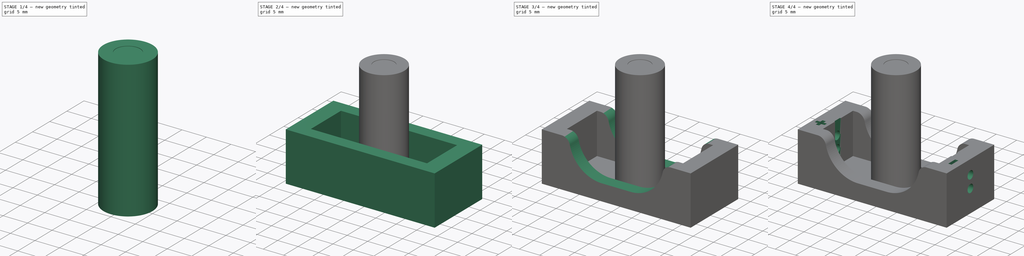
[diagram: build sequence overview — one tinted view per stage of 4, left to right]
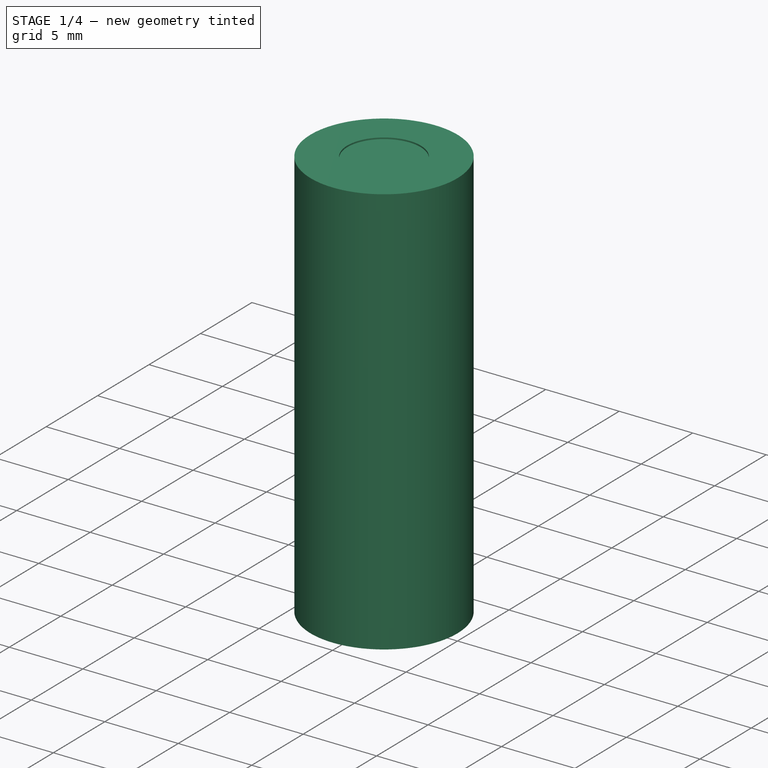
[diagram: stage 1 of 4 — iso view after this stage's code; geometry added in this stage tinted green]
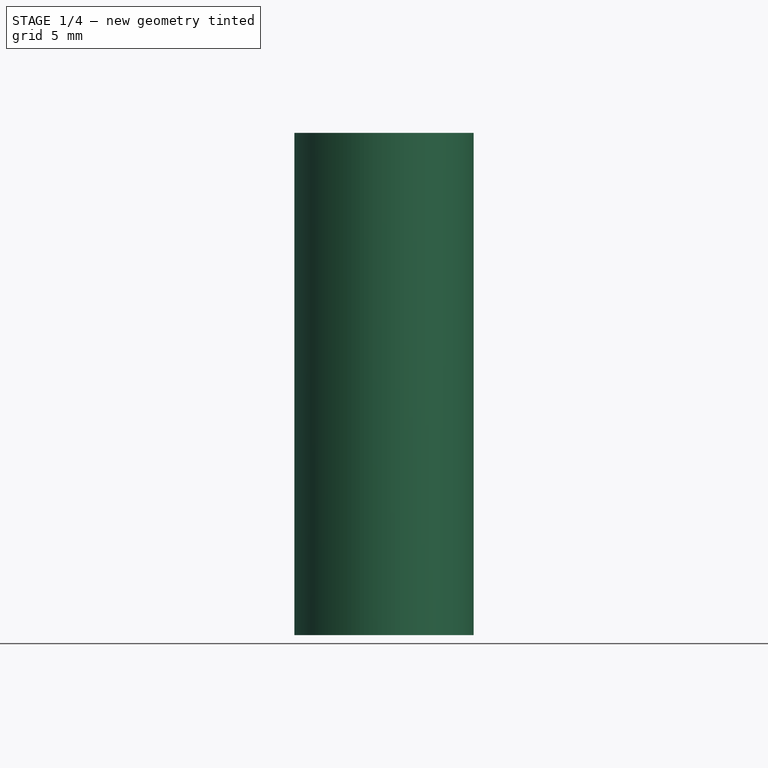
[diagram: stage 1 of 4 — front view after this stage's code; geometry added in this stage tinted green]
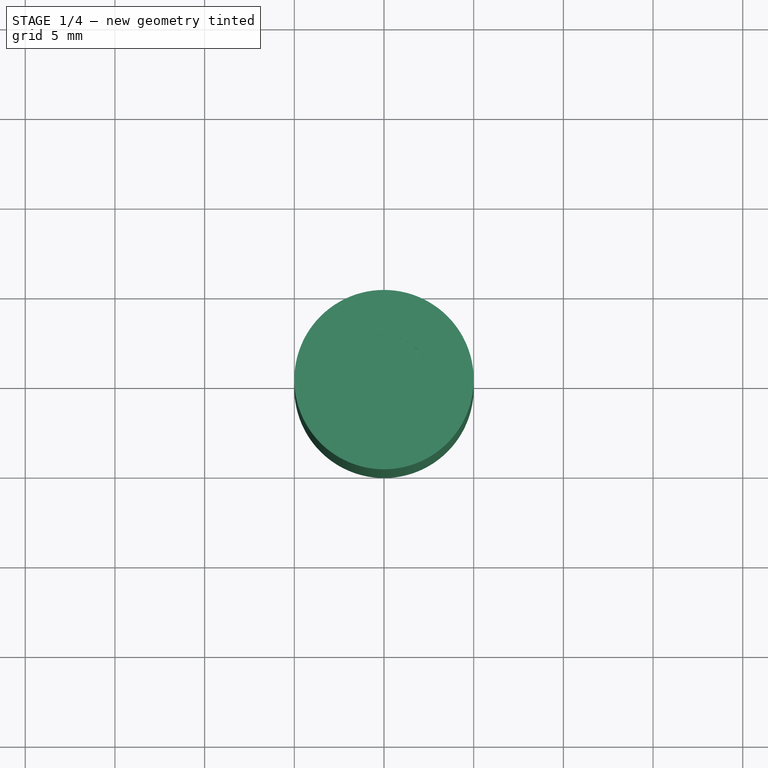
[diagram: stage 1 of 4 — top view after this stage's code; geometry added in this stage tinted green]
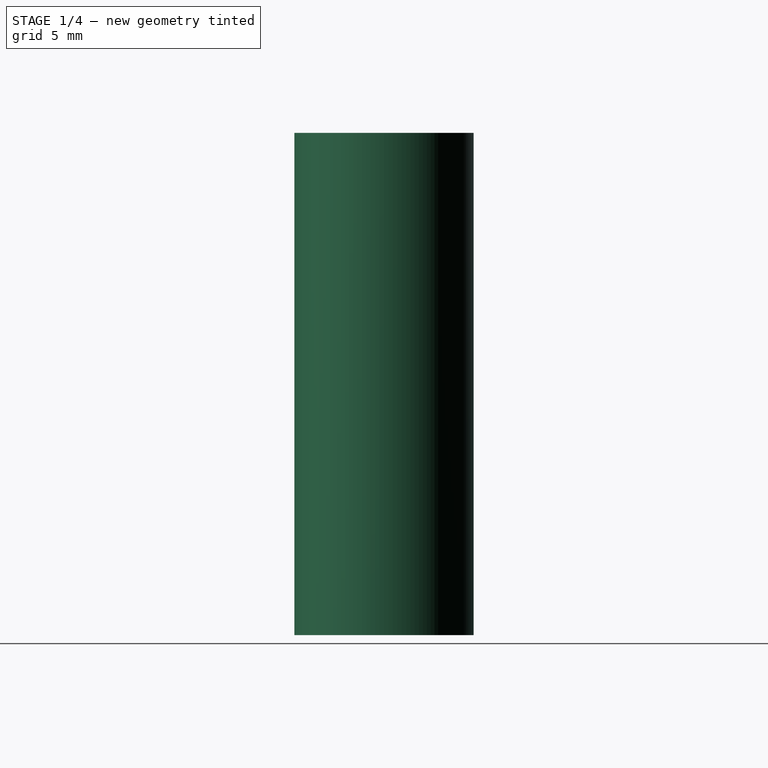
[diagram: stage 1 of 4 — right view after this stage's code; geometry added in this stage tinted green]
FCSTD DOCUMENT  (FreeCAD 0.19R)
Label: 23a-battery-container
License: All rights reserved
LicenseURL: http://en.wikipedia.org/wiki/All_rights_reserved
objects: Sketcher::SketchObject×8, PartDesign::Pocket×6, PartDesign::Pad×2, PartDesign::Body×2, Part::Cylinder×1, PartDesign::Fillet×1, PartDesign::FeatureBase×1
note: 30 computed .brp shape members not serialized (recipe doc carries the construction recipe); baked Part::Feature solids carry a one-line shape summary decoded from their .brp

FEATURE [Sketcher::SketchObject] Sketch
  FullyConstrained = true
  MapMode = 5
  Support = -> [XY_Plane]
  sketch-geometry (4):
    g0: LineSegment StartX=-18.2 StartY=8.3 StartZ=0 EndX=18.2 EndY=8.3 EndZ=0
    g1: LineSegment StartX=18.2 StartY=8.3 StartZ=0 EndX=18.2 EndY=-8.3 EndZ=0
    g2: LineSegment StartX=18.2 StartY=-8.3 StartZ=0 EndX=-18.2 EndY=-8.3 EndZ=0
    g3: LineSegment StartX=-18.2 StartY=-8.3 StartZ=0 EndX=-18.2 EndY=8.3 EndZ=0
  constraints (11):
    c: Coincident(g0,g1)
    c: Coincident(g1,g2)
    c: Coincident(g2,g3)
    c: Coincident(g3,g0)
    c: Horizontal(g0)
    c: Horizontal(g2)
    c: Vertical(g1)
    c: Vertical(g3)
    c: Symmetric(g1,g0,g-1)
    c: Distance(g0) = 36.4
    c: Distance(g1) = 16.6
FEATURE [Part::Cylinder] Cylinder  label="Цилиндр"
  Angle = 360
  AttacherType = Attacher::AttachEngine3D
  Height = 28
  Placement = pos=(-14,0,7) rot=(0,1,0;1.5708rad)
  Radius = 5
FEATURE [PartDesign::Body] Body  label="box"
  Group = -> [Sketch,Pad,Sketch001,Pad001,Sketch002,Pocket,Fillet,Sketch003,Pocket001,Sketch004,Pocket002,Sketch005,Pocket003]
  Origin = -> Origin
  Tip = -> Pocket003
FEATURE [PartDesign::FeatureBase] BaseFeature
  BaseFeature = -> Cylinder
FEATURE [Sketcher::SketchObject] Sketch006
  FullyConstrained = true
  MapMode = 5
  Placement = pos=(0,0,28) rot=(0,0,1;0rad)
  Support = -> [BaseFeature]
  sketch-geometry (1):
    g0: Circle CenterX=0 CenterY=0 CenterZ=0 NormalX=0 NormalY=0 NormalZ=1 AngleXU=0 Radius=2.5
  constraints (2):
    c: Coincident(g0,g-1)
    c: Diameter(g0) = 5
FEATURE [PartDesign::Pocket] Pocket004
  BaseFeature = -> BaseFeature
  Length = 0.1
  Length2 = 100
  Profile = -> Sketch006
  Type = 0
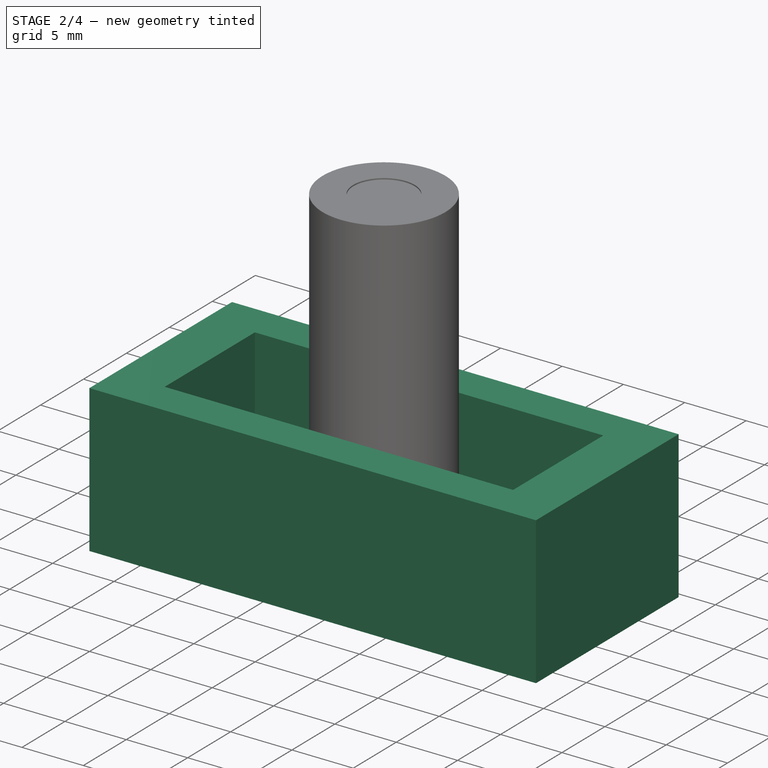
[diagram: stage 2 of 4 — iso view after this stage's code; geometry added in this stage tinted green]
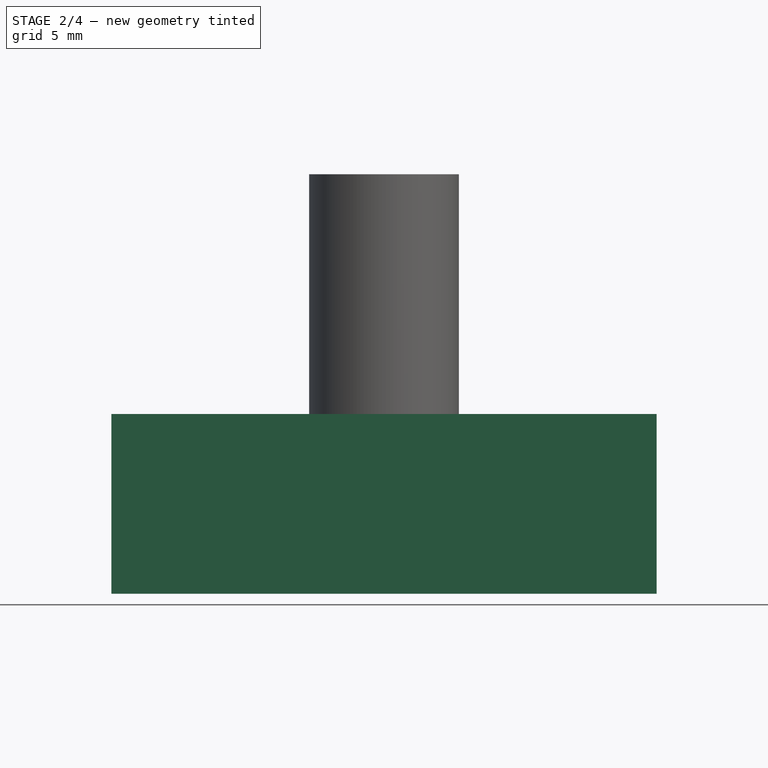
[diagram: stage 2 of 4 — front view after this stage's code; geometry added in this stage tinted green]
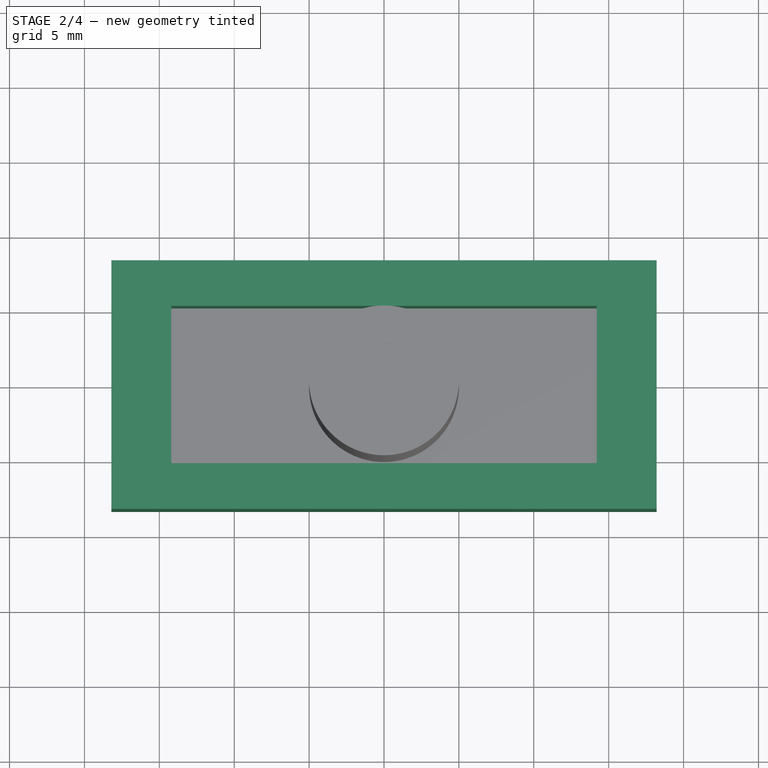
[diagram: stage 2 of 4 — top view after this stage's code; geometry added in this stage tinted green]
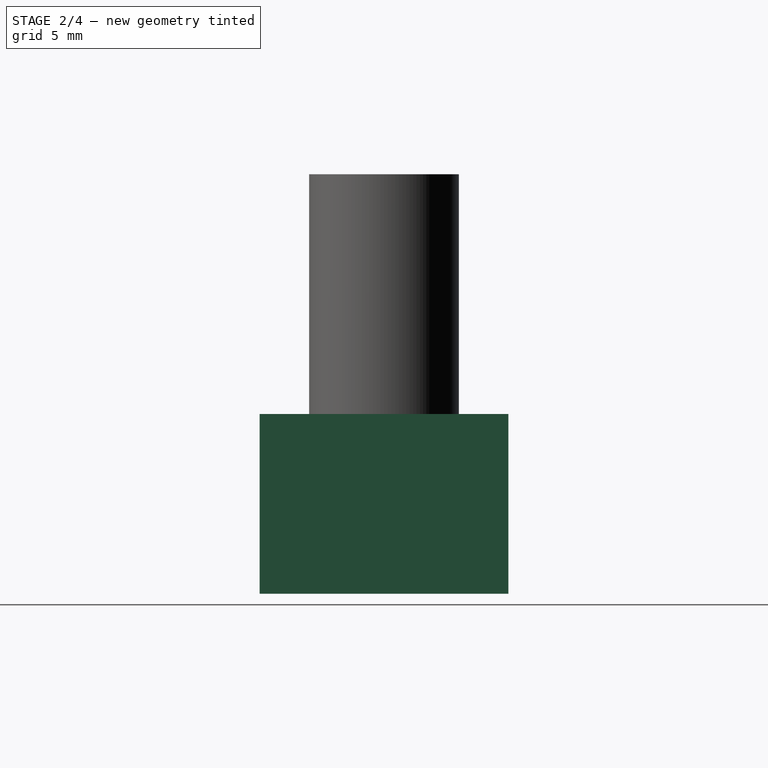
[diagram: stage 2 of 4 — right view after this stage's code; geometry added in this stage tinted green]
FEATURE [PartDesign::Pad] Pad
  Direction = (1,1,1)
  Length = 2
  Length2 = 100
  Profile = -> Sketch
  Type = 0
FEATURE [Sketcher::SketchObject] Sketch001
  ExternalGeometry = -> [Pad]
  FullyConstrained = true
  MapMode = 5
  Placement = pos=(0,0,2) rot=(0,0,1;0rad)
  Support = -> [Pad]
  sketch-geometry (8):
    g0: LineSegment StartX=-18.2 StartY=8.3 StartZ=0 EndX=18.2 EndY=8.3 EndZ=0
    g1: LineSegment StartX=18.2 StartY=8.3 StartZ=0 EndX=18.2 EndY=-8.3 EndZ=0
    g2: LineSegment StartX=18.2 StartY=-8.3 StartZ=0 EndX=-18.2 EndY=-8.3 EndZ=0
    g3: LineSegment StartX=-18.2 StartY=-8.3 StartZ=0 EndX=-18.2 EndY=8.3 EndZ=0
    g4: LineSegment StartX=-14.2 StartY=5.25 StartZ=0 EndX=14.2 EndY=5.25 EndZ=0
    g5: LineSegment StartX=14.2 StartY=5.25 StartZ=0 EndX=14.2 EndY=-5.25 EndZ=0
    g6: LineSegment StartX=14.2 StartY=-5.25 StartZ=0 EndX=-14.2 EndY=-5.25 EndZ=0
    g7: LineSegment StartX=-14.2 StartY=-5.25 StartZ=0 EndX=-14.2 EndY=5.25 EndZ=0
  constraints (23):
    c: Coincident(g0,g1)
    c: Coincident(g1,g2)
    c: Coincident(g2,g3)
    c: Coincident(g3,g0)
    c: Horizontal(g0)
    c: Horizontal(g2)
    c: Vertical(g1)
    c: Vertical(g3)
    c: Coincident(g0,g-3)
    c: Coincident(g1,g-4)
    c: Coincident(g4,g5)
    c: Coincident(g5,g6)
    c: Coincident(g6,g7)
    c: Coincident(g7,g4)
    c: Horizontal(g4)
    c: Horizontal(g6)
    c: Vertical(g5)
    c: Vertical(g7)
    c: Symmetric(g5,g4,g-1)
    c: Distance(g4) = 28.4
    c: Distance(g5) = 10.5
    c: DistanceY(g4,g0) = 3.05
    c: DistanceX(g4,g0) = 4
FEATURE [PartDesign::Pad] Pad001
  BaseFeature = -> Pad
  Direction = (1,1,1)
  Length = 10
  Length2 = 100
  Profile = -> Sketch001
  Type = 0
FEATURE [Sketcher::SketchObject] Sketch007
  FullyConstrained = true
  MapMode = 5
  Placement = pos=(0,0,0) rot=(1,0,0;3.14159rad)
  Support = -> [Pocket004]
  sketch-geometry (1):
    g0: Circle CenterX=0 CenterY=0 CenterZ=0 NormalX=0 NormalY=0 NormalZ=1 AngleXU=0 Radius=2.5
  constraints (2):
    c: Coincident(g0,g-1)
    c: Diameter(g0) = 5
FEATURE [PartDesign::Pocket] Pocket005
  BaseFeature = -> Pocket004
  Length = 0.1
  Length2 = 100
  Profile = -> Sketch007
  Type = 0
FEATURE [PartDesign::Body] Body001  label="battery-dont-print"
  BaseFeature = -> Cylinder
  Group = -> [BaseFeature,Sketch006,Pocket004,Sketch007,Pocket005]
  Origin = -> Origin001
  Placement = pos=(-14,0,7) rot=(0,1,0;1.5708rad)
  Tip = -> Pocket005
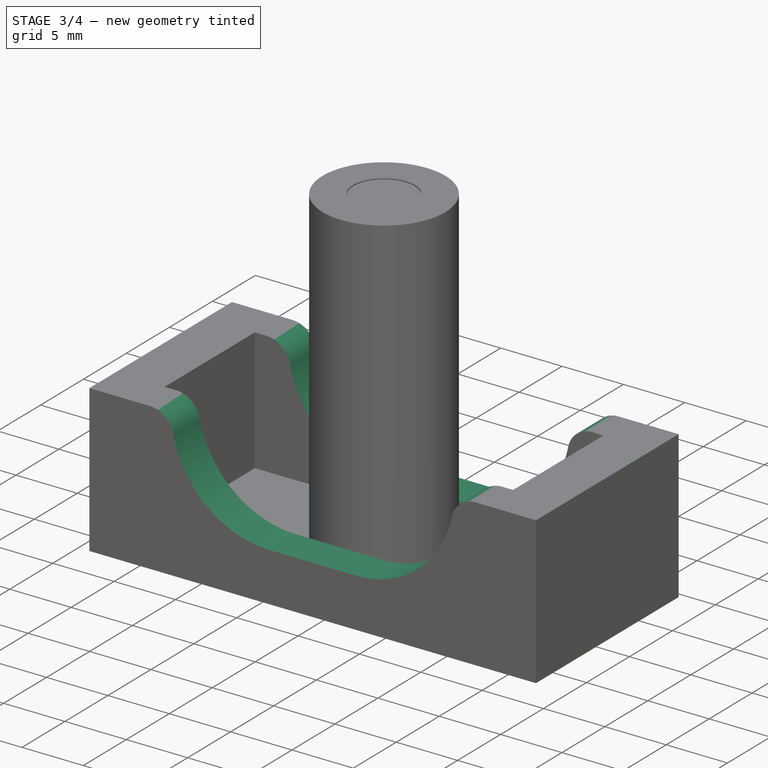
[diagram: stage 3 of 4 — iso view after this stage's code; geometry added in this stage tinted green]
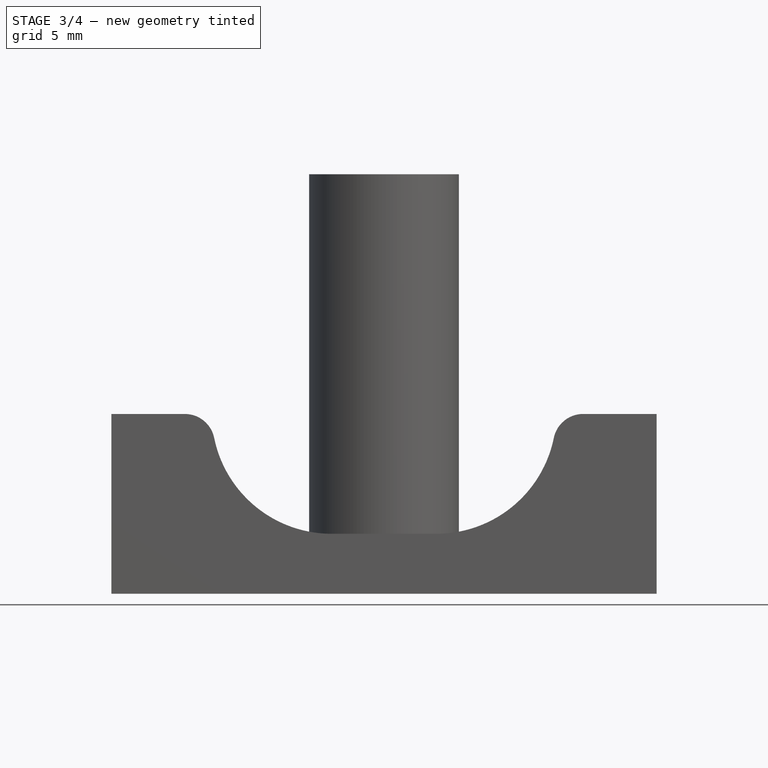
[diagram: stage 3 of 4 — front view after this stage's code; geometry added in this stage tinted green]
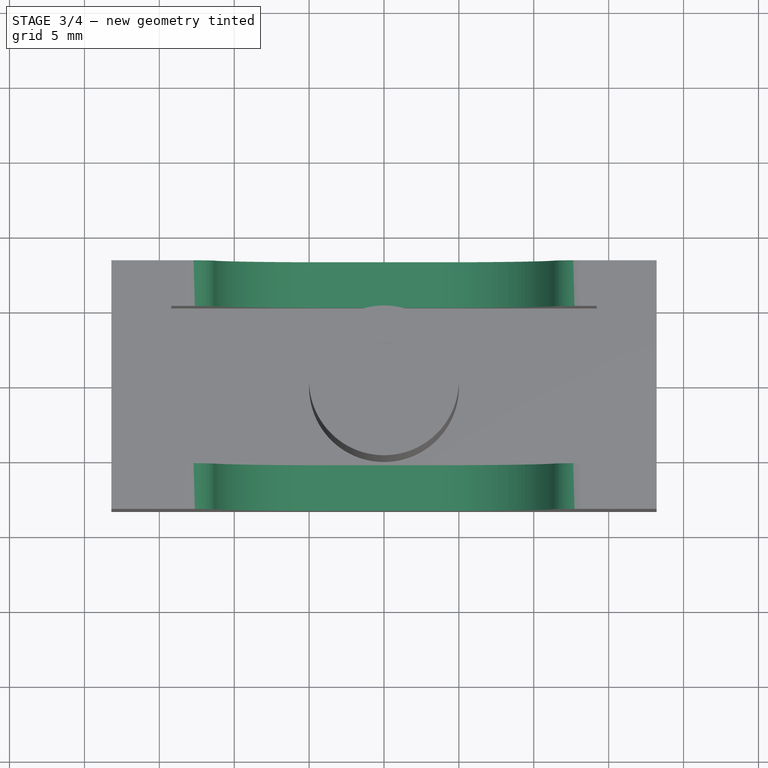
[diagram: stage 3 of 4 — top view after this stage's code; geometry added in this stage tinted green]
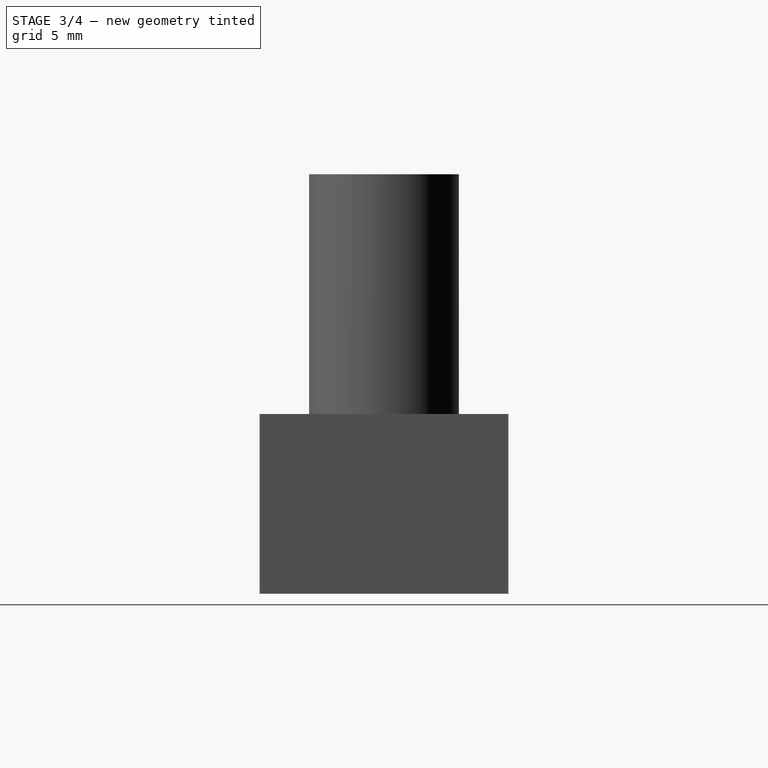
[diagram: stage 3 of 4 — right view after this stage's code; geometry added in this stage tinted green]
FEATURE [Sketcher::SketchObject] Sketch002
  ExternalGeometry = -> [Pad001]
  FullyConstrained = true
  MapMode = 5
  Placement = pos=(0,-8.3,0) rot=(1,0,0;1.5708rad)
  Support = -> [Pad001]
  sketch-geometry (6):
    g0: LineSegment StartX=-3.5 StartY=4 StartZ=0 EndX=3.5 EndY=4 EndZ=0
    g1: LineSegment StartX=-3.5 StartY=4 StartZ=0 EndX=-13.5 EndY=4 EndZ=0
    g2: LineSegment StartX=3.5 StartY=4 StartZ=0 EndX=13.5 EndY=4 EndZ=0
    g3: ArcOfCircle CenterX=-3.50003 CenterY=12 CenterZ=0 NormalX=0 NormalY=0 NormalZ=1 AngleXU=0 Radius=8 StartAngle=3.14159 EndAngle=4.71239
    g4: ArcOfCircle CenterX=3.50003 CenterY=12 CenterZ=0 NormalX=0 NormalY=0 NormalZ=1 AngleXU=0 Radius=8 StartAngle=4.71238 EndAngle=6.28319
    g5: LineSegment StartX=-11.5 StartY=12 StartZ=0 EndX=11.5 EndY=12 EndZ=0
  constraints (19):
    c: DistanceY(g-3,g0) = 2
    c: Symmetric(g0,g0,g-2)
    c: DistanceX(g0,g0) = 7
    c: Coincident(g1,g0)
    c: Horizontal(g1)
    c: DistanceX(g1,g1) = 10
    c: Coincident(g2,g0)
    c: Horizontal(g2)
    c: DistanceX(g2,g2) = 10
    c: PointOnObject(g3,g-4)
    c: Coincident(g3,g0)
    c: Tangent(g3,g1)
    c: PointOnObject(g4,g-4)
    c: Coincident(g4,g0)
    c: Tangent(g4,g2)
    c: PointOnObject(g3,g-4)
    c: PointOnObject(g4,g-4)
    c: Coincident(g4,g5)
    c: Coincident(g3,g5)
FEATURE [PartDesign::Pocket] Pocket
  BaseFeature = -> Pad001
  Length = 17
  Length2 = 100
  Profile = -> Sketch002
  Type = 0
FEATURE [PartDesign::Fillet] Fillet
  Base = -> Pocket [Edge35,Edge37,Edge28,Edge24]
  BaseFeature = -> Pocket
  Radius = 2
  SupportTransform = false
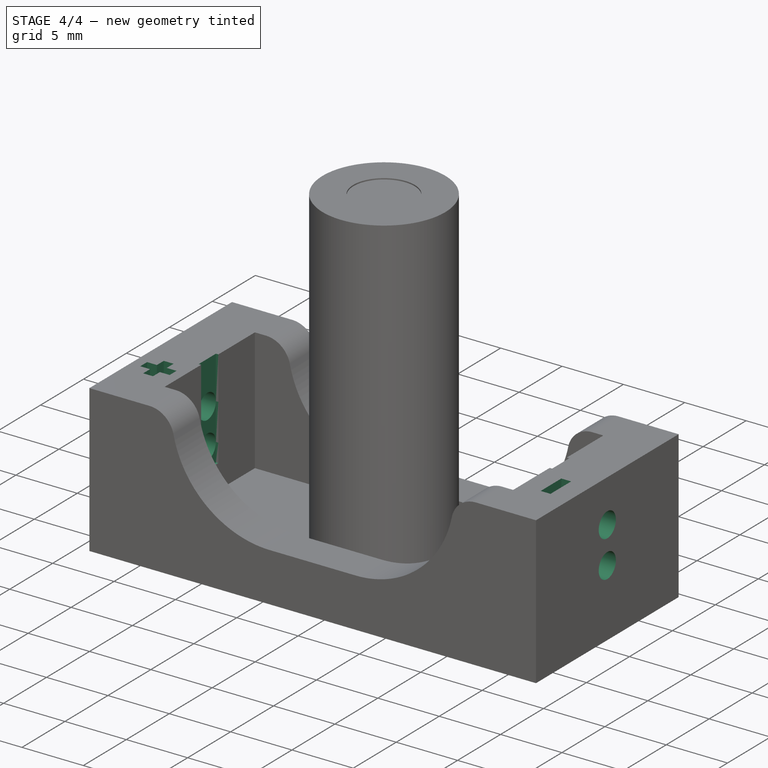
[diagram: stage 4 of 4 — iso view after this stage's code; geometry added in this stage tinted green]
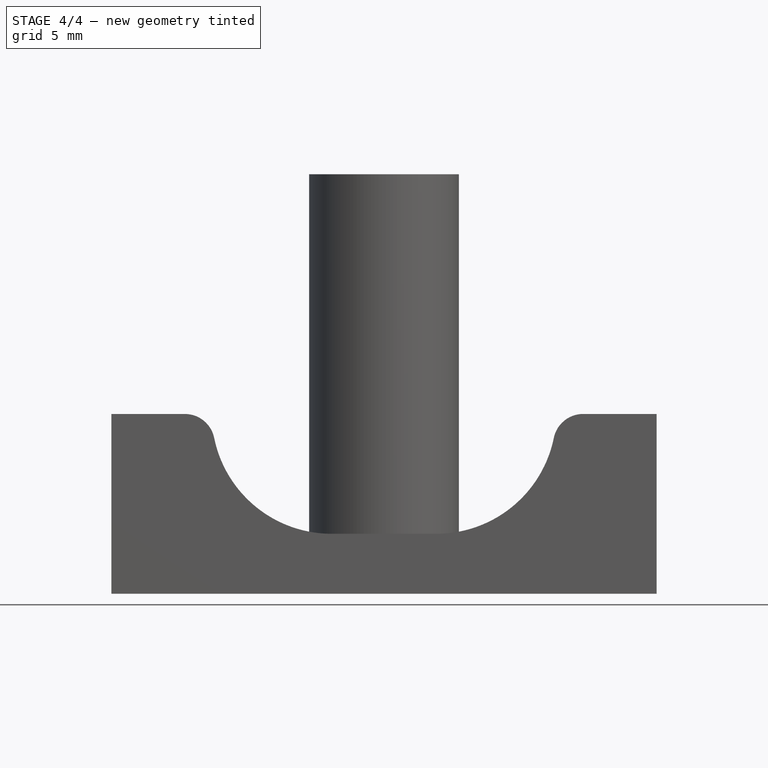
[diagram: stage 4 of 4 — front view after this stage's code; geometry added in this stage tinted green]
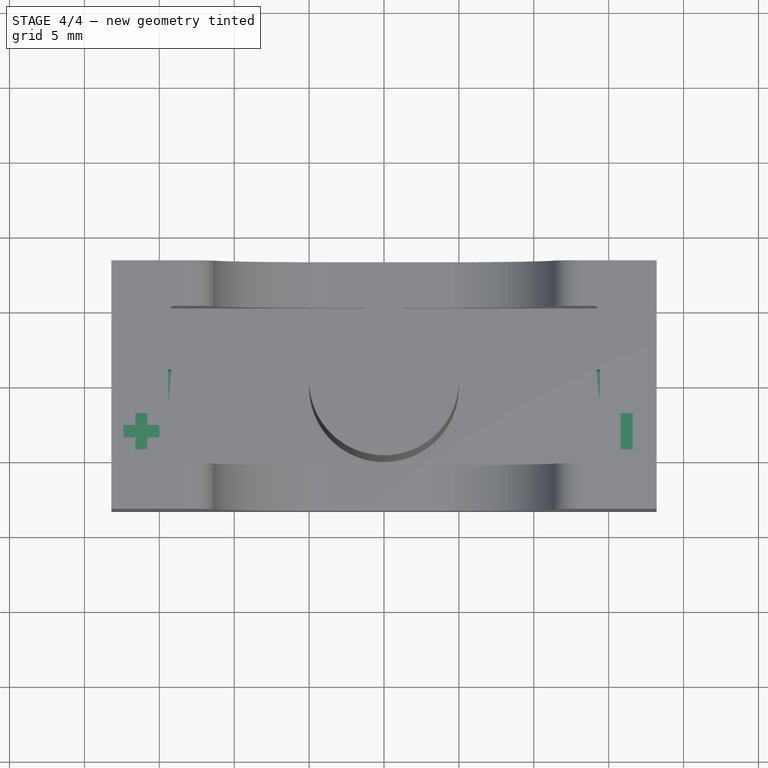
[diagram: stage 4 of 4 — top view after this stage's code; geometry added in this stage tinted green]
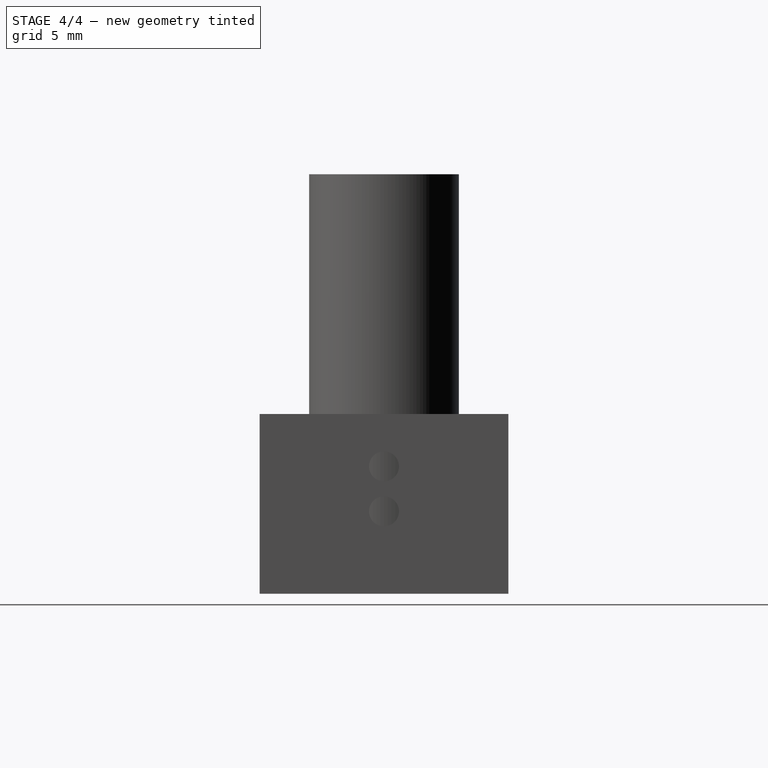
[diagram: stage 4 of 4 — right view after this stage's code; geometry added in this stage tinted green]
FEATURE [Sketcher::SketchObject] Sketch003
  ExternalGeometry = -> [Fillet]
  FullyConstrained = true
  MapMode = 5
  Placement = pos=(-18.2,0,0) rot=(0.57735,-0.57735,-0.57735;2.0944rad)
  Support = -> [Fillet]
  sketch-geometry (2):
    g0: Circle CenterX=0 CenterY=8.5 CenterZ=0 NormalX=0 NormalY=0 NormalZ=1 AngleXU=0 Radius=1
    g1: Circle CenterX=0 CenterY=5.5 CenterZ=0 NormalX=0 NormalY=0 NormalZ=1 AngleXU=0 Radius=1
  constraints (6):
    c: PointOnObject(g0,g-2)
    c: PointOnObject(g1,g-2)
    c: Diameter(g0) = 2
    c: Diameter(g1) = 2
    c: DistanceY(g1,g0) = 3
    c: DistanceY(g-3,g1) = 3.5
FEATURE [PartDesign::Pocket] Pocket001
  BaseFeature = -> Fillet
  Length = 40
  Length2 = 100
  Profile = -> Sketch003
  Type = 0
FEATURE [Sketcher::SketchObject] Sketch004
  ExternalGeometry = -> [Pocket001]
  FullyConstrained = true
  MapMode = 5
  Placement = pos=(0,0,12) rot=(0,0,1;0rad)
  Support = -> [Pocket001]
  sketch-geometry (4):
    g0: LineSegment StartX=-14.4 StartY=1 StartZ=0 EndX=14.4 EndY=1 EndZ=0
    g1: LineSegment StartX=14.4 StartY=1 StartZ=0 EndX=14.4 EndY=-1 EndZ=0
    g2: LineSegment StartX=14.4 StartY=-1 StartZ=0 EndX=-14.4 EndY=-1 EndZ=0
    g3: LineSegment StartX=-14.4 StartY=-1 StartZ=0 EndX=-14.4 EndY=1 EndZ=0
  constraints (11):
    c: Coincident(g0,g1)
    c: Coincident(g1,g2)
    c: Coincident(g2,g3)
    c: Coincident(g3,g0)
    c: Horizontal(g0)
    c: Horizontal(g2)
    c: Vertical(g1)
    c: Vertical(g3)
    c: Symmetric(g1,g0,g-1)
    c: DistanceY(g1,g1) = 2
    c: DistanceX(g-3,g1) = 0.2
FEATURE [PartDesign::Pocket] Pocket002
  BaseFeature = -> Pocket001
  Length = 8
  Length2 = 100
  Profile = -> Sketch004
  Type = 0
FEATURE [Sketcher::SketchObject] Sketch005
  ExternalGeometry = -> [Pocket002]
  FullyConstrained = true
  MapMode = 5
  Placement = pos=(0,0,12) rot=(0,0,1;0rad)
  Support = -> [Pocket002]
  sketch-geometry (19):
    g0: LineSegment StartX=-16.6 StartY=-2.725 StartZ=0 EndX=-16.6 EndY=-1.925 EndZ=0
    g1: LineSegment StartX=-16.6 StartY=-1.925 StartZ=0 EndX=-15.8 EndY=-1.925 EndZ=0
    g2: LineSegment StartX=-15.8 StartY=-1.925 StartZ=0 EndX=-15.8 EndY=-2.725 EndZ=0
    g3: LineSegment StartX=-15.8 StartY=-2.725 StartZ=0 EndX=-15 EndY=-2.725 EndZ=0
    g4: LineSegment StartX=-15 StartY=-2.725 StartZ=0 EndX=-15 EndY=-3.525 EndZ=0
    g5: LineSegment StartX=-15 StartY=-3.525 StartZ=0 EndX=-15.8 EndY=-3.525 EndZ=0
    g6: LineSegment StartX=-15.8 StartY=-3.525 StartZ=0 EndX=-15.8 EndY=-4.325 EndZ=0
    g7: LineSegment StartX=-15.8 StartY=-4.325 StartZ=0 EndX=-16.6 EndY=-4.325 EndZ=0
    g8: LineSegment StartX=-16.6 StartY=-4.325 StartZ=0 EndX=-16.6 EndY=-3.525 EndZ=0
    g9: LineSegment StartX=-16.6 StartY=-3.525 StartZ=0 EndX=-17.4 EndY=-3.525 EndZ=0
    g10: LineSegment StartX=-17.4 StartY=-3.525 StartZ=0 EndX=-17.4 EndY=-2.725 EndZ=0
    g11: LineSegment StartX=-17.4 StartY=-2.725 StartZ=0 EndX=-16.6 EndY=-2.725 EndZ=0
    g12: LineSegment StartX=-16.2 StartY=-6.775 StartZ=0 EndX=-16.2 EndY=-1.925 EndZ=0
    g13: LineSegment StartX=-17.4 StartY=-3.125 StartZ=0 EndX=-14.2 EndY=-3.125 EndZ=0
    g14: LineSegment StartX=15.8 StartY=-1.925 StartZ=0 EndX=16.6 EndY=-1.925 EndZ=0
    g15: LineSegment StartX=16.6 StartY=-1.925 StartZ=0 EndX=16.6 EndY=-4.325 EndZ=0
    g16: LineSegment StartX=16.6 StartY=-4.325 StartZ=0 EndX=15.8 EndY=-4.325 EndZ=0
    g17: LineSegment StartX=15.8 StartY=-4.325 StartZ=0 EndX=15.8 EndY=-1.925 EndZ=0
    g18: LineSegment StartX=16.2 StartY=-1.925 StartZ=0 EndX=16.2 EndY=-6.775 EndZ=0
  constraints (55):
    c: Vertical(g0)
    c: Coincident(g0,g1)
    c: Coincident(g1,g2)
    c: Vertical(g2)
    c: Coincident(g2,g3)
    c: Horizontal(g3)
    c: Coincident(g3,g4)
    c: Vertical(g4)
    c: Coincident(g4,g5)
    c: Horizontal(g5)
    c: Coincident(g5,g6)
    c: Vertical(g6)
    c: Coincident(g6,g7)
    c: Horizontal(g7)
    c: Coincident(g7,g8)
    c: Vertical(g8)
    c: Coincident(g8,g9)
    c: Horizontal(g9)
    c: Coincident(g9,g10)
    c: Vertical(g10)
    c: Coincident(g10,g11)
    c: Coincident(g11,g0)
    c: Horizontal(g11)
    c: Horizontal(g1)
    c: Vertical(g12)
    c: Symmetric(g-3,g-4,g12)
    c: DistanceX(g7,g7) = 0.8
    c: Distance(g6) = 0.8
    c: Equal(g7,g4)
    c: Equal(g4,g1)
    c: Equal(g1,g10)
    c: Equal(g6,g8)
    c: Equal(g6,g5)
    c: Equal(g3,g5)
    c: Equal(g3,g2)
    c: Equal(g8,g9)
    c: Symmetric(g-4,g-4,g13)
    c: Horizontal(g13)
    c: Coincident(g14,g15)
    c: Coincident(g15,g16)
    c: Coincident(g16,g17)
    c: Coincident(g17,g14)
    c: Horizontal(g14)
    c: Horizontal(g16)
    c: Vertical(g15)
    c: Vertical(g17)
    c: Equal(g14,g1)
    c: PointOnObject(g15,g7)
    c: Vertical(g18)
    c: Symmetric(g-6,g-5,g18)
    c: Symmetric(g14,g14,g18)
    c: PointOnObject(g14,g1)
    c: DistanceX(g3,g-4) = 0.8
    c: Symmetric(g1,g0,g12)
    c: Symmetric(g9,g10,g13)
FEATURE [PartDesign::Pocket] Pocket003
  BaseFeature = -> Pocket002
  Length = 1
  Length2 = 100
  Profile = -> Sketch005
  Type = 0
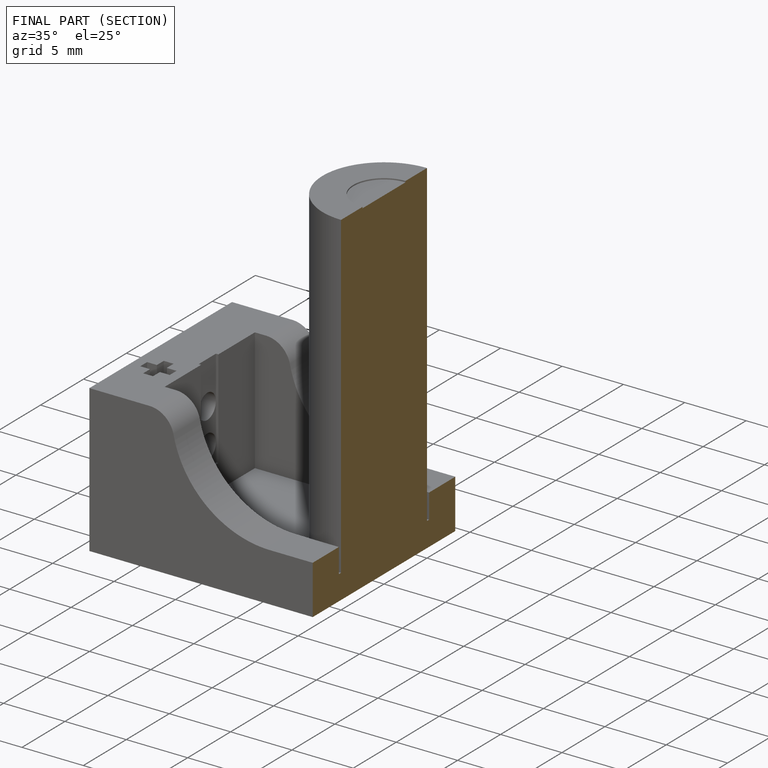
[diagram: finished part — half-section view (interior)]
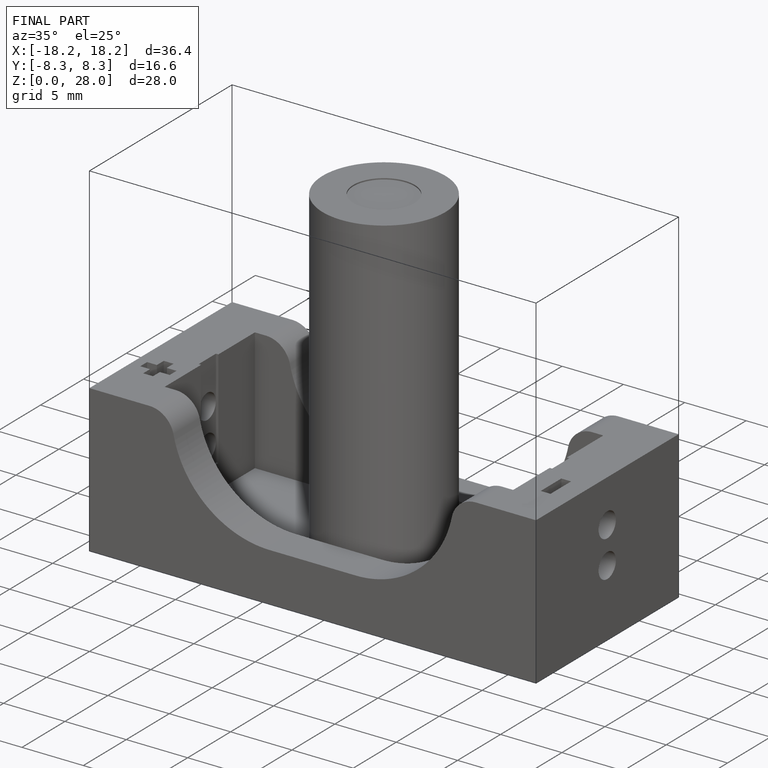
[diagram: finished part — iso view with bounding-box wireframe]
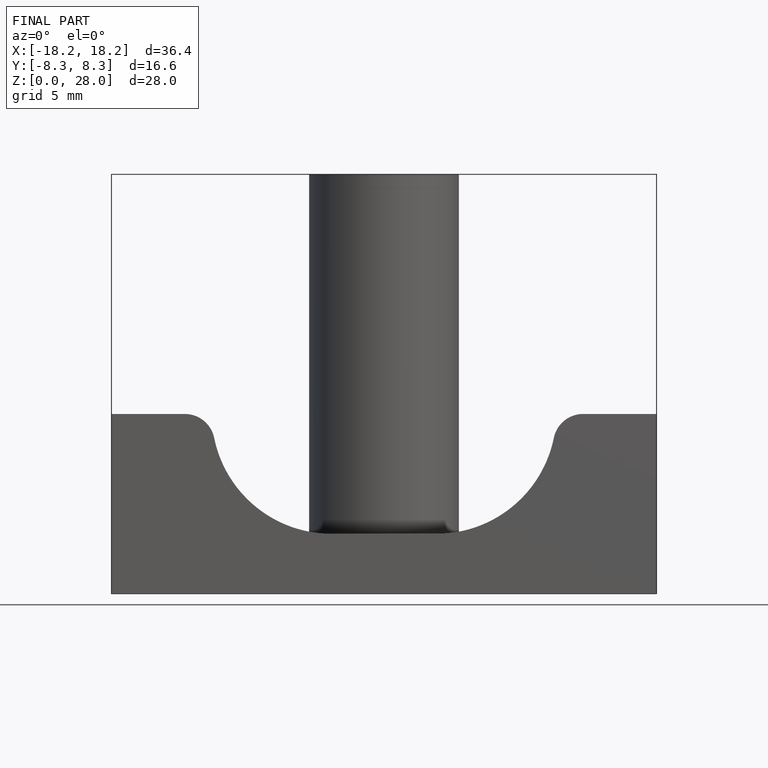
[diagram: finished part — front view with bounding-box wireframe]
